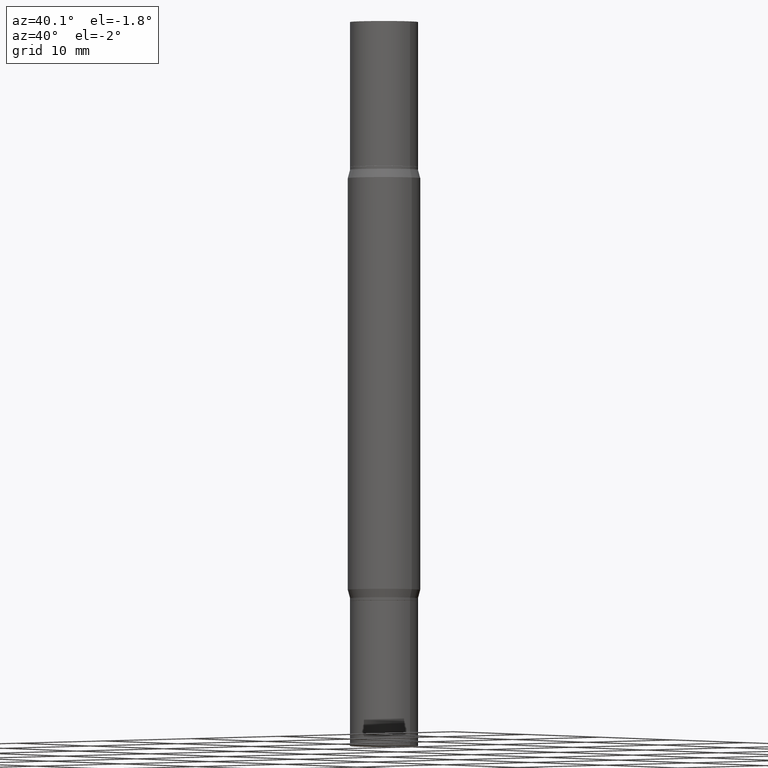
[diagram: clean part render]
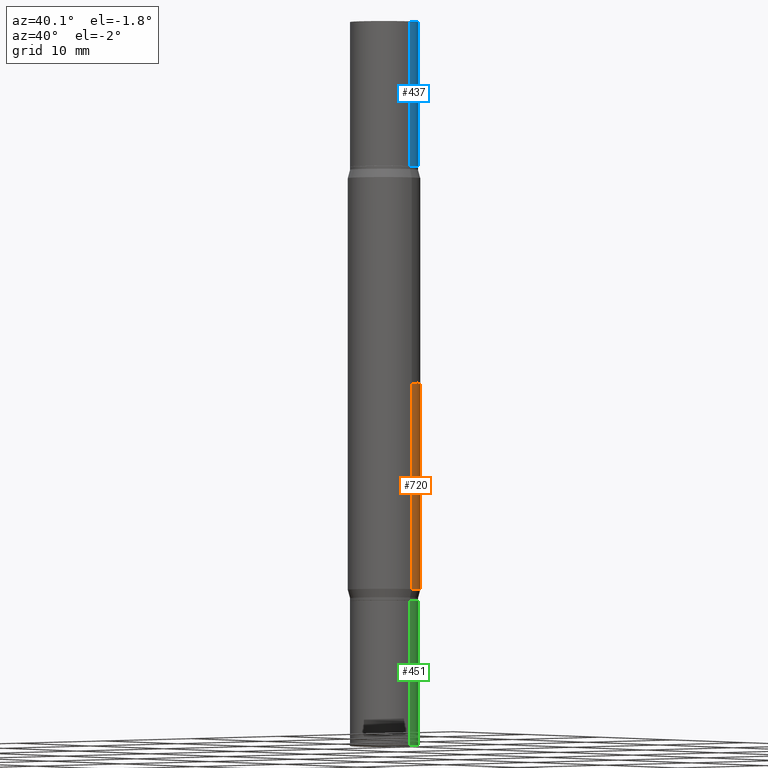
[diagram: same view with three faces highlighted in distinct colors, each labeled with its STEP entity id]
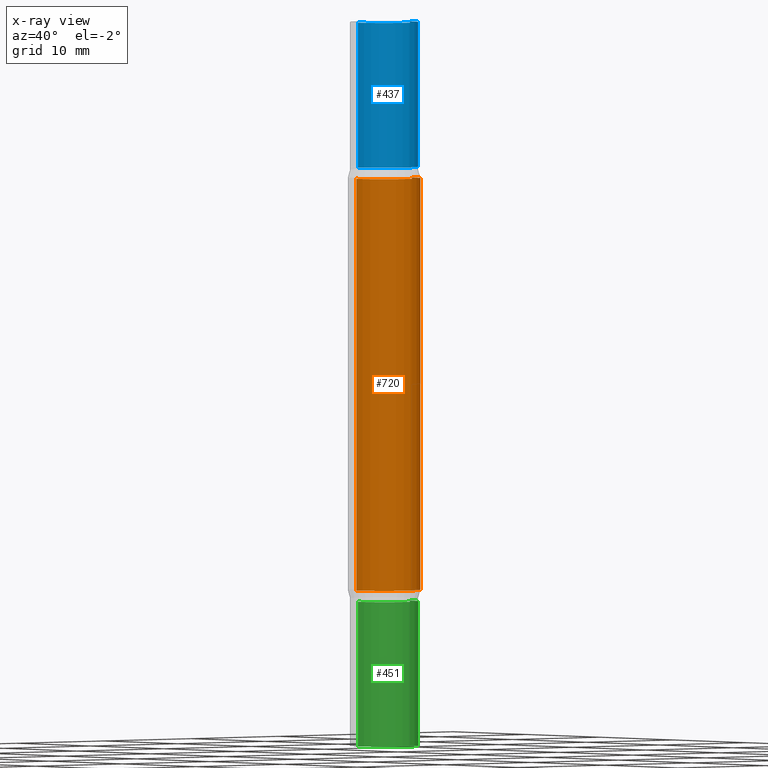
[diagram: x-ray of the same camera — body ghosted, the three highlighted faces saturated]
A machine part, auxiliary view with three faces highlighted in distinct colors.
The next image is the same camera in x-ray (body ghosted, the three faces saturated) — at least one of them is partly hidden behind the body in this view.
Their STEP definitions:

[orange] entity #720 — the highlighted cylindrical surface (edge-blend (fillet) strip) has radius 3.175 mm, axis along (-0, -0, -1).
#3 = ORIENTED_EDGE ( 'NONE', *, *, #782, .F. ) ;
#43 = DIRECTION ( 'NONE',  ( -2.445468806185136597E-29, 3.491481338843145583E-15, 1.000000000000000000 ) ) ;
#47 = VECTOR ( 'NONE', #360, 39.37007874015748143 ) ;
#52 = EDGE_CURVE ( 'NONE', #464, #257, #654, .T. ) ;
#58 = CIRCLE ( 'NONE', #195, 0.1250000000000000000 ) ;
#119 = ORIENTED_EDGE ( 'NONE', *, *, #228, .T. ) ;
#130 = ORIENTED_EDGE ( 'NONE', *, *, #52, .F. ) ;
#195 = AXIS2_PLACEMENT_3D ( 'NONE', #504, #43, #434 ) ;
#208 = CARTESIAN_POINT ( 'NONE',  ( 0.1250000000000000000, -9.601978376966118441E-15, -2.499999999999999556 ) ) ;
#228 = EDGE_CURVE ( 'NONE', #440, #736, #58, .T. ) ;
#246 = ORIENTED_EDGE ( 'NONE', *, *, #818, .T. ) ;
#257 = VERTEX_POINT ( 'NONE', #798 ) ;
#302 = VECTOR ( 'NONE', #559, 39.37007874015748143 ) ;
#344 = DIRECTION ( 'NONE',  ( -2.445468806185136597E-29, -3.491805094961124077E-15, -1.000000000000000000 ) ) ;
#360 = DIRECTION ( 'NONE',  ( -2.445468806185136877E-29, -3.491805094961123683E-15, -1.000000000000000000 ) ) ;
#375 = DIRECTION ( 'NONE',  ( 1.000000000000000000, -6.982962677686266711E-15, 0.000000000000000000 ) ) ;
#434 = DIRECTION ( 'NONE',  ( 1.000000000000000000, -6.982962677686270655E-15, 0.000000000000000000 ) ) ;
#440 = VERTEX_POINT ( 'NONE', #904 ) ;
#464 = VERTEX_POINT ( 'NONE', #894 ) ;
#493 = CYLINDRICAL_SURFACE ( 'NONE', #495, 0.1250000000000000000 ) ;
#495 = AXIS2_PLACEMENT_3D ( 'NONE', #725, #344, #650 ) ;
#504 = CARTESIAN_POINT ( 'NONE',  ( 4.795295336410958635E-29, -6.846410855445973637E-15, -1.960890003700961337 ) ) ;
#559 = DIRECTION ( 'NONE',  ( -2.445468806185136877E-29, -3.491805094961123683E-15, -1.000000000000000000 ) ) ;
#568 = AXIS2_PLACEMENT_3D ( 'NONE', #751, #601, #375 ) ;
#601 = DIRECTION ( 'NONE',  ( 2.445468806185136597E-29, 3.491805094961124077E-15, 1.000000000000000000 ) ) ;
#650 = DIRECTION ( 'NONE',  ( 1.000000000000000000, -6.982962677686262766E-15, 0.000000000000000000 ) ) ;
#654 = CIRCLE ( 'NONE', #568, 0.1250000000000000000 ) ;
#717 = CARTESIAN_POINT ( 'NONE',  ( -0.1250000000000000000, -7.871545792533893657E-15, -2.499999999999999556 ) ) ;
#720 = ADVANCED_FACE ( 'NONE', ( #868 ), #493, .T. ) ;
#725 = CARTESIAN_POINT ( 'NONE',  ( 0.000000000000000000, -8.729108042255335103E-15, -2.499999999999999556 ) ) ;
#736 = VERTEX_POINT ( 'NONE', #797 ) ;
#751 = CARTESIAN_POINT ( 'NONE',  ( 4.795295336410958635E-29, -1.882062336673981410E-15, -0.5391099962990381078 ) ) ;
#782 = EDGE_CURVE ( 'NONE', #257, #736, #874, .T. ) ;
#797 = CARTESIAN_POINT ( 'NONE',  ( -0.1250000000000000000, -3.506789423832489448E-15, -1.960890003700961337 ) ) ;
#798 = CARTESIAN_POINT ( 'NONE',  ( -0.1250000000000000000, -1.024500086952540162E-15, -0.5391099962990381078 ) ) ;
#818 = EDGE_CURVE ( 'NONE', #464, #440, #864, .T. ) ;
#821 = EDGE_LOOP ( 'NONE', ( #3, #130, #246, #119 ) ) ;
#864 = LINE ( 'NONE', #208, #47 ) ;
#868 = FACE_OUTER_BOUND ( 'NONE', #821, .T. ) ;
#874 = LINE ( 'NONE', #717, #302 ) ;
#894 = CARTESIAN_POINT ( 'NONE',  ( 0.1250000000000000000, -2.754932671384765144E-15, -0.5391099962990381078 ) ) ;
#904 = CARTESIAN_POINT ( 'NONE',  ( 0.1250000000000000000, -7.719281190156756975E-15, -1.960890003700961337 ) ) ;

[blue] entity #437 — the highlighted cylindrical surface (edge-blend (fillet) strip) has radius 2.9769 mm, axis along (-0, -0, -1).
#60 = CARTESIAN_POINT ( 'NONE',  ( -0.1171999999999999986, -6.849621325398205664E-17, -0.4999999999999993339 ) ) ;
#62 = CYLINDRICAL_SURFACE ( 'NONE', #704, 0.1171999999999999986 ) ;
#107 = VECTOR ( 'NONE', #290, 39.37007874015748143 ) ;
#131 = DIRECTION ( 'NONE',  ( 2.445468806185136597E-29, 3.491805094961124077E-15, 1.000000000000000000 ) ) ;
#135 = DIRECTION ( 'NONE',  ( 1.000000000000000000, -6.982962677686266711E-15, 0.000000000000000000 ) ) ;
#139 = ORIENTED_EDGE ( 'NONE', *, *, #512, .T. ) ;
#146 = CARTESIAN_POINT ( 'NONE',  ( 0.000000000000000000, -8.729108042255335103E-15, -2.499999999999999556 ) ) ;
#156 = AXIS2_PLACEMENT_3D ( 'NONE', #167, #540, #859 ) ;
#165 = LINE ( 'NONE', #817, #671 ) ;
#167 = CARTESIAN_POINT ( 'NONE',  ( 4.890937612370273754E-29, -1.745497852333085568E-15, -0.4999999999999993339 ) ) ;
#196 = CIRCLE ( 'NONE', #156, 0.1171999999999999986 ) ;
#202 = ORIENTED_EDGE ( 'NONE', *, *, #448, .F. ) ;
#290 = DIRECTION ( 'NONE',  ( -2.445468806185136877E-29, -3.491805094961123683E-15, -1.000000000000000000 ) ) ;
#304 = DIRECTION ( 'NONE',  ( 1.000000000000000000, -6.982962677686269866E-15, 0.000000000000000000 ) ) ;
#315 = CARTESIAN_POINT ( 'NONE',  ( 6.113672015462842613E-29, 4.046951474745467748E-19, 5.463695987328526437E-16 ) ) ;
#341 = CARTESIAN_POINT ( 'NONE',  ( 0.1171999999999999986, -2.563901078157915826E-15, -0.4999999999999993339 ) ) ;
#370 = DIRECTION ( 'NONE',  ( -2.445468806185136877E-29, -3.491805094961123683E-15, -1.000000000000000000 ) ) ;
#437 = ADVANCED_FACE ( 'NONE', ( #892 ), #62, .T. ) ;
#448 = EDGE_CURVE ( 'NONE', #766, #926, #965, .T. ) ;
#512 = EDGE_CURVE ( 'NONE', #849, #926, #196, .T. ) ;
#540 = DIRECTION ( 'NONE',  ( 2.445468806185136597E-29, 3.491805094961124077E-15, 1.000000000000000000 ) ) ;
#602 = CIRCLE ( 'NONE', #796, 0.1171999999999999986 ) ;
#633 = EDGE_LOOP ( 'NONE', ( #202, #662, #770, #139 ) ) ;
#662 = ORIENTED_EDGE ( 'NONE', *, *, #863, .F. ) ;
#663 = CARTESIAN_POINT ( 'NONE',  ( -0.1171999999999999986, -6.849621325398194571E-17, 5.463695987328557991E-16 ) ) ;
#666 = CARTESIAN_POINT ( 'NONE',  ( 0.1171999999999999986, -8.179985306773559567E-16, 5.463695987328526437E-16 ) ) ;
#669 = DIRECTION ( 'NONE',  ( -2.445468806185136597E-29, -3.491805094961124077E-15, -1.000000000000000000 ) ) ;
#671 = VECTOR ( 'NONE', #370, 39.37007874015748143 ) ;
#704 = AXIS2_PLACEMENT_3D ( 'NONE', #146, #669, #304 ) ;
#738 = CARTESIAN_POINT ( 'NONE',  ( -0.1171999999999999986, -7.925057676916510614E-15, -2.499999999999999556 ) ) ;
#766 = VERTEX_POINT ( 'NONE', #663 ) ;
#770 = ORIENTED_EDGE ( 'NONE', *, *, #961, .T. ) ;
#796 = AXIS2_PLACEMENT_3D ( 'NONE', #315, #131, #135 ) ;
#817 = CARTESIAN_POINT ( 'NONE',  ( 0.1171999999999999986, -9.547511268080165952E-15, -2.499999999999999556 ) ) ;
#849 = VERTEX_POINT ( 'NONE', #341 ) ;
#859 = DIRECTION ( 'NONE',  ( 1.000000000000000000, -6.982962677686265922E-15, 0.000000000000000000 ) ) ;
#863 = EDGE_CURVE ( 'NONE', #944, #766, #602, .T. ) ;
#892 = FACE_OUTER_BOUND ( 'NONE', #633, .T. ) ;
#926 = VERTEX_POINT ( 'NONE', #60 ) ;
#944 = VERTEX_POINT ( 'NONE', #666 ) ;
#961 = EDGE_CURVE ( 'NONE', #944, #849, #165, .T. ) ;
#965 = LINE ( 'NONE', #738, #107 ) ;

[green] entity #451 — the highlighted cylindrical surface (edge-blend (fillet) strip) has radius 2.9769 mm, axis along (-0, 0, 1).
#71 = VERTEX_POINT ( 'NONE', #606 ) ;
#126 = VECTOR ( 'NONE', #778, 39.37007874015748143 ) ;
#141 = CIRCLE ( 'NONE', #416, 0.1171999999999999986 ) ;
#152 = LINE ( 'NONE', #835, #964 ) ;
#206 = VERTEX_POINT ( 'NONE', #485 ) ;
#232 = CYLINDRICAL_SURFACE ( 'NONE', #838, 0.1171999999999999986 ) ;
#267 = DIRECTION ( 'NONE',  ( 1.000000000000000000, -6.982962677686261977E-15, 0.000000000000000000 ) ) ;
#403 = LINE ( 'NONE', #555, #126 ) ;
#407 = CARTESIAN_POINT ( 'NONE',  ( 0.1171999999999999986, -7.801365903511122804E-15, -2.000000000000000444 ) ) ;
#416 = AXIS2_PLACEMENT_3D ( 'NONE', #936, #473, #928 ) ;
#438 = DIRECTION ( 'NONE',  ( -2.445468806185136597E-29, 3.491481338843145583E-15, 1.000000000000000000 ) ) ;
#441 = DIRECTION ( 'NONE',  ( -2.445468806185136877E-29, 3.491481338843145188E-15, 1.000000000000000000 ) ) ;
#447 = CIRCLE ( 'NONE', #731, 0.1171999999999999986 ) ;
#451 = ADVANCED_FACE ( 'NONE', ( #598 ), #232, .T. ) ;
#454 = EDGE_LOOP ( 'NONE', ( #692, #546, #786, #721 ) ) ;
#473 = DIRECTION ( 'NONE',  ( -2.445468806185136597E-29, 3.491481338843145583E-15, 1.000000000000000000 ) ) ;
#485 = CARTESIAN_POINT ( 'NONE',  ( -0.1171999999999999986, -7.023076926086241238E-15, -2.500000000000000000 ) ) ;
#488 = CARTESIAN_POINT ( 'NONE',  ( 6.113672015462842613E-29, -8.728703347107864943E-15, -2.500000000000000000 ) ) ;
#537 = EDGE_CURVE ( 'NONE', #596, #756, #141, .T. ) ;
#546 = ORIENTED_EDGE ( 'NONE', *, *, #569, .T. ) ;
#555 = CARTESIAN_POINT ( 'NONE',  ( -0.1171999999999999986, 8.327560863108374081E-16, -5.764991925778749121E-30 ) ) ;
#569 = EDGE_CURVE ( 'NONE', #206, #756, #403, .T. ) ;
#596 = VERTEX_POINT ( 'NONE', #407 ) ;
#598 = FACE_OUTER_BOUND ( 'NONE', #454, .T. ) ;
#606 = CARTESIAN_POINT ( 'NONE',  ( 0.1171999999999999986, -9.547106572932694215E-15, -2.500000000000000000 ) ) ;
#674 = CARTESIAN_POINT ( 'NONE',  ( 0.000000000000000000, 0.000000000000000000, 0.000000000000000000 ) ) ;
#692 = ORIENTED_EDGE ( 'NONE', *, *, #753, .T. ) ;
#721 = ORIENTED_EDGE ( 'NONE', *, *, #897, .F. ) ;
#731 = AXIS2_PLACEMENT_3D ( 'NONE', #488, #946, #267 ) ;
#753 = EDGE_CURVE ( 'NONE', #71, #206, #447, .T. ) ;
#756 = VERTEX_POINT ( 'NONE', #805 ) ;
#778 = DIRECTION ( 'NONE',  ( -2.445468806185136877E-29, 3.491481338843145188E-15, 1.000000000000000000 ) ) ;
#786 = ORIENTED_EDGE ( 'NONE', *, *, #537, .F. ) ;
#805 = CARTESIAN_POINT ( 'NONE',  ( -0.1171999999999999986, -7.023076926086241238E-15, -2.000000000000000444 ) ) ;
#835 = CARTESIAN_POINT ( 'NONE',  ( 0.1171999999999999986, -8.184032258248304553E-16, 5.714879181232836475E-30 ) ) ;
#838 = AXIS2_PLACEMENT_3D ( 'NONE', #674, #438, #900 ) ;
#897 = EDGE_CURVE ( 'NONE', #71, #596, #152, .T. ) ;
#900 = DIRECTION ( 'NONE',  ( 1.000000000000000000, -6.982962677686266711E-15, 4.876176775795935793E-29 ) ) ;
#928 = DIRECTION ( 'NONE',  ( 1.000000000000000000, -6.982962677686269866E-15, 0.000000000000000000 ) ) ;
#936 = CARTESIAN_POINT ( 'NONE',  ( 4.890937612370273754E-29, -6.982962677686291954E-15, -2.000000000000000444 ) ) ;
#946 = DIRECTION ( 'NONE',  ( -2.445468806185136597E-29, 3.491481338843145583E-15, 1.000000000000000000 ) ) ;
#964 = VECTOR ( 'NONE', #441, 39.37007874015748143 ) ;